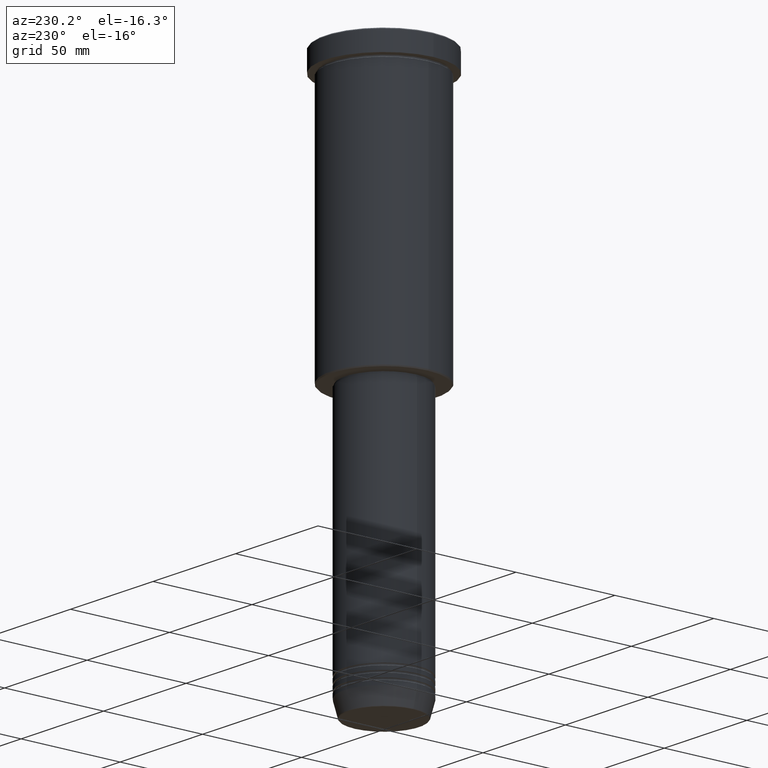
[diagram: clean part render]
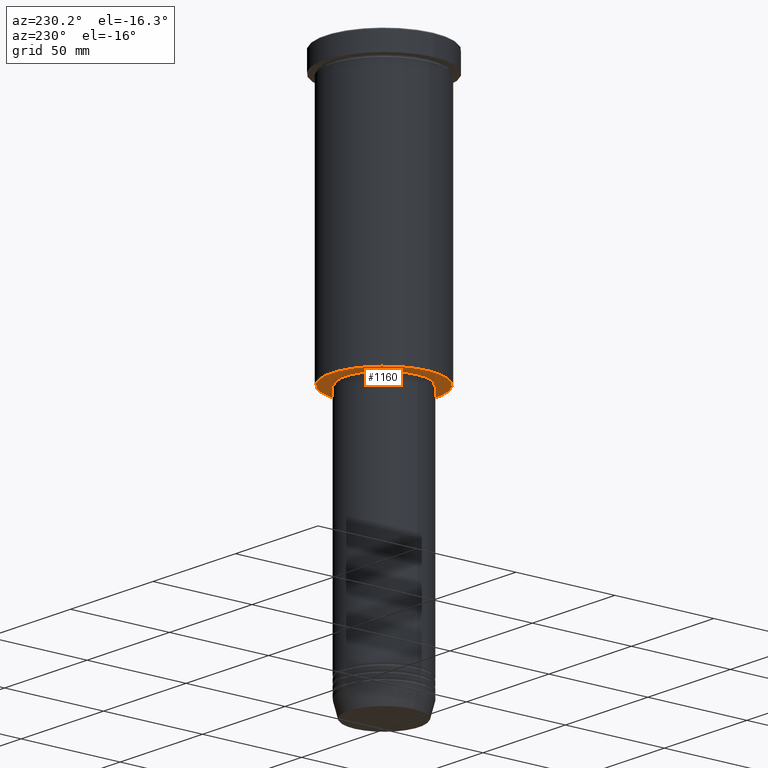
[diagram: same view with one face highlighted and labeled with its STEP entity id]
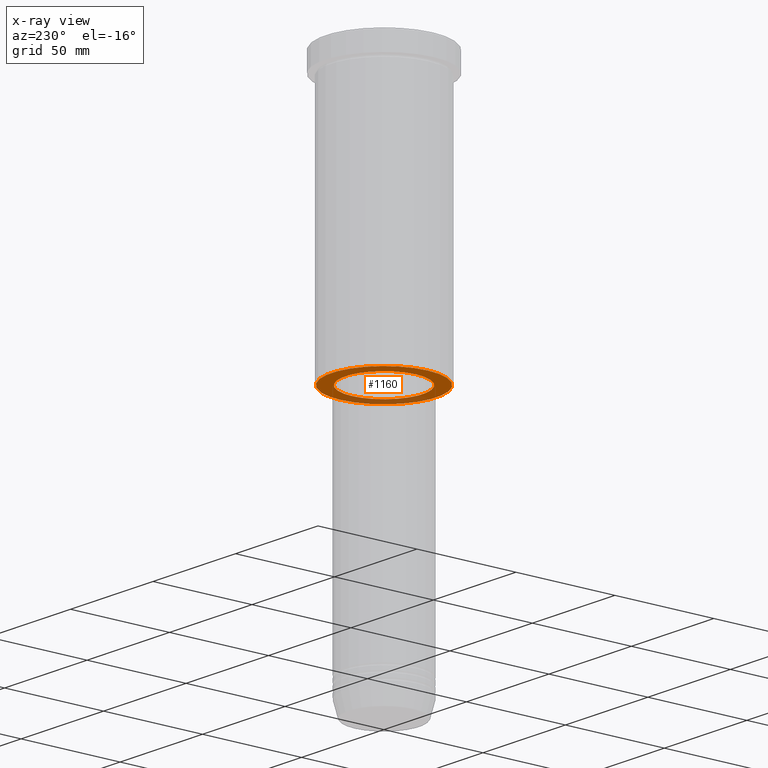
[diagram: x-ray of the same camera — body ghosted, the highlighted face saturated]
A machine part, auxiliary view. The second image highlights one B-rep face of the part: STEP entity #1160.
The next image is the same camera in x-ray: the body ghosted, the highlighted face saturated — about 24% of this face is hidden behind the body in this view.
In plain terms, the highlighted planar face has unit normal (0, 0, -1).
Its self-contained STEP definition (entity closure, byte-faithful):
#11 = DIRECTION ( 'NONE',  ( -1.000000000000000000, 0.000000000000000000, 0.000000000000000000 ) ) ;
#124 = FACE_OUTER_BOUND ( 'NONE', #694, .T. ) ;
#144 = EDGE_CURVE ( 'NONE', #731, #814, #781, .T. ) ;
#164 = CARTESIAN_POINT ( 'NONE',  ( 0.000000000000000000, 0.000000000000000000, -136.0000000000000000 ) ) ;
#187 = AXIS2_PLACEMENT_3D ( 'NONE', #759, #1127, #299 ) ;
#199 = DIRECTION ( 'NONE',  ( -0.000000000000000000, -0.000000000000000000, 1.000000000000000000 ) ) ;
#211 = CARTESIAN_POINT ( 'NONE',  ( -19.50000000000000000, 2.388061258337338939E-15, -136.0000000000000000 ) ) ;
#244 = PLANE ( 'NONE',  #307 ) ;
#288 = EDGE_LOOP ( 'NONE', ( #677, #1006 ) ) ;
#295 = CARTESIAN_POINT ( 'NONE',  ( -26.49999999999996803, 3.275930187719167974E-15, -136.0000000000000000 ) ) ;
#299 = DIRECTION ( 'NONE',  ( -1.000000000000000000, 0.000000000000000000, 0.000000000000000000 ) ) ;
#307 = AXIS2_PLACEMENT_3D ( 'NONE', #965, #1159, #507 ) ;
#315 = EDGE_CURVE ( 'NONE', #814, #731, #1096, .T. ) ;
#342 = EDGE_CURVE ( 'NONE', #1146, #896, #843, .T. ) ;
#425 = AXIS2_PLACEMENT_3D ( 'NONE', #813, #837, #11 ) ;
#507 = DIRECTION ( 'NONE',  ( -1.000000000000000000, 0.000000000000000000, -0.000000000000000000 ) ) ;
#517 = DIRECTION ( 'NONE',  ( 1.000000000000000000, 0.000000000000000000, 0.000000000000000000 ) ) ;
#617 = EDGE_CURVE ( 'NONE', #896, #1146, #1173, .T. ) ;
#659 = CARTESIAN_POINT ( 'NONE',  ( 0.000000000000000000, 0.000000000000000000, -136.0000000000000000 ) ) ;
#677 = ORIENTED_EDGE ( 'NONE', *, *, #617, .T. ) ;
#694 = EDGE_LOOP ( 'NONE', ( #1064, #907 ) ) ;
#712 = DIRECTION ( 'NONE',  ( -0.000000000000000000, -0.000000000000000000, 1.000000000000000000 ) ) ;
#731 = VERTEX_POINT ( 'NONE', #1104 ) ;
#759 = CARTESIAN_POINT ( 'NONE',  ( 0.000000000000000000, 0.000000000000000000, -136.0000000000000000 ) ) ;
#767 = CARTESIAN_POINT ( 'NONE',  ( 19.50000000000000000, 0.000000000000000000, -136.0000000000000000 ) ) ;
#781 = CIRCLE ( 'NONE', #425, 26.49999999999996803 ) ;
#813 = CARTESIAN_POINT ( 'NONE',  ( 0.000000000000000000, 0.000000000000000000, -136.0000000000000000 ) ) ;
#814 = VERTEX_POINT ( 'NONE', #295 ) ;
#837 = DIRECTION ( 'NONE',  ( 0.000000000000000000, 0.000000000000000000, -1.000000000000000000 ) ) ;
#843 = CIRCLE ( 'NONE', #1171, 19.50000000000000000 ) ;
#896 = VERTEX_POINT ( 'NONE', #767 ) ;
#907 = ORIENTED_EDGE ( 'NONE', *, *, #315, .T. ) ;
#965 = CARTESIAN_POINT ( 'NONE',  ( 0.000000000000000000, 27.00000000000000355, -136.0000000000000000 ) ) ;
#1006 = ORIENTED_EDGE ( 'NONE', *, *, #342, .T. ) ;
#1032 = DIRECTION ( 'NONE',  ( 1.000000000000000000, 0.000000000000000000, 0.000000000000000000 ) ) ;
#1039 = AXIS2_PLACEMENT_3D ( 'NONE', #164, #712, #517 ) ;
#1051 = FACE_BOUND ( 'NONE', #288, .T. ) ;
#1064 = ORIENTED_EDGE ( 'NONE', *, *, #144, .T. ) ;
#1096 = CIRCLE ( 'NONE', #187, 26.49999999999996803 ) ;
#1104 = CARTESIAN_POINT ( 'NONE',  ( 26.49999999999996803, 0.000000000000000000, -136.0000000000000000 ) ) ;
#1127 = DIRECTION ( 'NONE',  ( 0.000000000000000000, 0.000000000000000000, -1.000000000000000000 ) ) ;
#1146 = VERTEX_POINT ( 'NONE', #211 ) ;
#1159 = DIRECTION ( 'NONE',  ( 0.000000000000000000, 0.000000000000000000, -1.000000000000000000 ) ) ;
#1160 = ADVANCED_FACE ( 'NONE', ( #124, #1051 ), #244, .T. ) ;
#1171 = AXIS2_PLACEMENT_3D ( 'NONE', #659, #199, #1032 ) ;
#1173 = CIRCLE ( 'NONE', #1039, 19.50000000000000000 ) ;